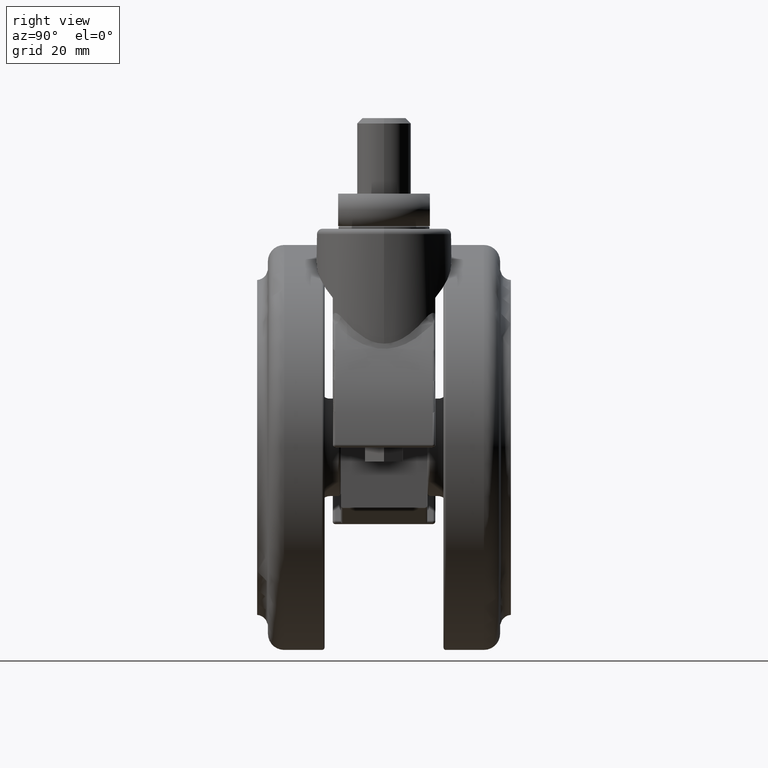
[diagram: clean part render]
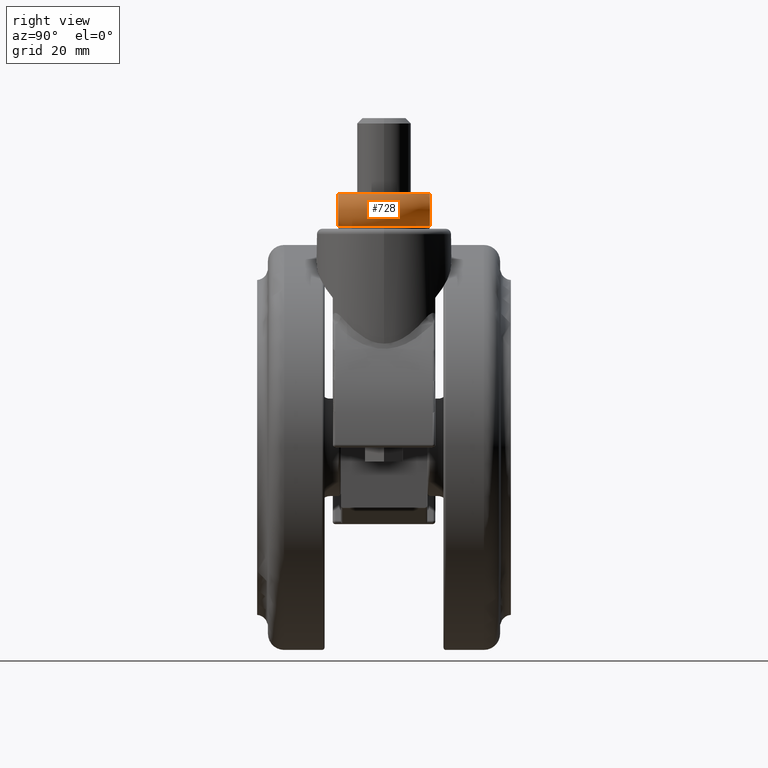
[diagram: same view with one face highlighted and labeled with its STEP entity id]
A machine part, right view. The second image highlights one B-rep face of the part: STEP entity #728.
In plain terms, the highlighted toroidal blend (fillet) surface has major radius 6.3542 mm and minor (blend) radius 4 mm.
Its self-contained STEP definition (entity closure, byte-faithful):
#25 = CARTESIAN_POINT ( 'NONE',  ( 5.558422470074428500, -8.499999999999913000, 2.243669333880693000 ) ) ;
#54 = B_SPLINE_CURVE_WITH_KNOTS ( 'NONE', 3,
 ( #3571, #4249, #4950, #892, #5617, #1594, #6314, #2267, #6993, #2945, #7666, #3595, #8330, #4279, #244, #4972, #931, #5647, #1618, #6345, #2299, #7022, #2974, #7700, #3622, #8353, #4311, #270, #4998, #956 ),
 .UNSPECIFIED., .F., .F.,
 ( 4, 2, 2, 2, 2, 2, 2, 2, 2, 2, 2, 2, 2, 2, 4 ),
 ( 0.002981804275303441700, 0.004101889952622809700, 0.004661932791282491500, 0.005221975629942175000, 0.005782018468601857700, 0.006342061307261540400, 0.006902104145921223100, 0.007462146984580905800, 0.008022189823240589300, 0.008582232661900272800, 0.009142275500559954700, 0.009702318339219636500, 0.01026236117787932000, 0.01082240401653900400, 0.01194248969385836700 ),
 .UNSPECIFIED. ) ;
#60 = CARTESIAN_POINT ( 'NONE',  ( 4.805496125058422100, -8.499999999999911200, 5.596845586427992500 ) ) ;
#244 = CARTESIAN_POINT ( 'NONE',  ( 5.912677338556869200, 8.500000000000000000, 3.691464825764651200 ) ) ;
#270 = CARTESIAN_POINT ( 'NONE',  ( 3.673279935559310000, 8.500000000000000000, 0.7368168943553163900 ) ) ;
#324 = CARTESIAN_POINT ( 'NONE',  ( 2.958037795423370300, 8.500000000000000000, 0.4999999999998860400 ) ) ;
#675 = CARTESIAN_POINT ( 'NONE',  ( 3.320938102547085400, -8.499999999999911200, 0.6051904574097518600 ) ) ;
#705 = CARTESIAN_POINT ( 'NONE',  ( 5.798337122176991300, -8.499999999999911200, 2.758914591916869200 ) ) ;
#728 = ADVANCED_FACE ( 'NONE', ( #4555 ), #8144, .T. ) ;
#740 = CARTESIAN_POINT ( 'NONE',  ( 4.338424135825536400, -8.499999999999907600, 5.919417256496898500 ) ) ;
#892 = CARTESIAN_POINT ( 'NONE',  ( 4.178392893720611000, 8.499999999999998200, 6.010522704488717900 ) ) ;
#931 = CARTESIAN_POINT ( 'NONE',  ( 5.889184999646361400, 8.500000000000000000, 3.123289930474376400 ) ) ;
#956 = CARTESIAN_POINT ( 'NONE',  ( 2.958037795423370300, 8.500000000000000000, 0.4999999999998860400 ) ) ;
#993 = CIRCLE ( 'NONE', #1648, 8.999999999999550600 ) ;
#1304 = CARTESIAN_POINT ( 'NONE',  ( 0.0000000000000000000, 0.0000000000000000000, 3.499999999999885000 ) ) ;
#1385 = CARTESIAN_POINT ( 'NONE',  ( 5.912677340065991800, -8.499999999999911200, 3.308535192482435300 ) ) ;
#1419 = CARTESIAN_POINT ( 'NONE',  ( 3.673279918959588800, -8.499999999999913000, 6.263183112504813200 ) ) ;
#1560 = ORIENTED_EDGE ( 'NONE', *, *, #2919, .T. ) ;
#1594 = CARTESIAN_POINT ( 'NONE',  ( 4.657942710687452200, 8.500000000000001800, 5.708676940681424000 ) ) ;
#1618 = CARTESIAN_POINT ( 'NONE',  ( 5.729450760723698200, 8.500000000000000000, 2.577989914978450400 ) ) ;
#1648 = AXIS2_PLACEMENT_3D ( 'NONE', #6401, #2356, #7087 ) ;
#1746 = ORIENTED_EDGE ( 'NONE', *, *, #4323, .F. ) ;
#1998 = EDGE_LOOP ( 'NONE', ( #8436, #1560, #1746, #2019 ) ) ;
#2019 = ORIENTED_EDGE ( 'NONE', *, *, #6557, .F. ) ;
#2048 = CARTESIAN_POINT ( 'NONE',  ( 4.178392909131842400, -8.499999999999913000, 0.9894773039334104900 ) ) ;
#2079 = CARTESIAN_POINT ( 'NONE',  ( 5.889184996736498900, -8.499999999999911200, 3.876710087050886600 ) ) ;
#2116 = CARTESIAN_POINT ( 'NONE',  ( 2.958037778009625200, -8.499999999999911200, 6.500000005047589900 ) ) ;
#2267 = CARTESIAN_POINT ( 'NONE',  ( 5.087615524475501700, 8.499999999999998200, 5.346348415099307700 ) ) ;
#2299 = CARTESIAN_POINT ( 'NONE',  ( 5.452985533873556900, 8.500000000000000000, 2.082928216990122200 ) ) ;
#2356 = DIRECTION ( 'NONE',  ( 0.0000000000000000000, 0.0000000000000000000, -1.000000000000000000 ) ) ;
#2437 = CARTESIAN_POINT ( 'NONE',  ( 0.0000000000000000000, 0.0000000000000000000, 6.500000005047589900 ) ) ;
#2537 = CIRCLE ( 'NONE', #4058, 8.999999305340569600 ) ;
#2726 = CARTESIAN_POINT ( 'NONE',  ( 4.657942724861418200, -8.499999999999909400, 1.291323069595781100 ) ) ;
#2757 = CARTESIAN_POINT ( 'NONE',  ( 5.729450753716800000, -8.499999999999909400, 4.422010101522777100 ) ) ;
#2896 = AXIS2_PLACEMENT_3D ( 'NONE', #1304, #8734, #6069 ) ;
#2919 = EDGE_CURVE ( 'NONE', #6020, #7057, #2537, .T. ) ;
#2945 = CARTESIAN_POINT ( 'NONE',  ( 5.455471081818611600, 8.500000000000001800, 4.913523281061844500 ) ) ;
#2974 = CARTESIAN_POINT ( 'NONE',  ( 5.086282115518916800, 8.499999999999998200, 1.652321554459616100 ) ) ;
#3103 = DIRECTION ( 'NONE',  ( -1.000000000000000000, 0.0000000000000000000, 0.0000000000000000000 ) ) ;
#3386 = CARTESIAN_POINT ( 'NONE',  ( 5.087615537005448600, -8.499999999999911200, 1.653651597249346400 ) ) ;
#3412 = CARTESIAN_POINT ( 'NONE',  ( 5.452985523429581400, -8.499999999999909400, 4.917071797860044700 ) ) ;
#3571 = CARTESIAN_POINT ( 'NONE',  ( 2.958037778009130000, 8.500000000000000000, 6.499999999999619900 ) ) ;
#3595 = CARTESIAN_POINT ( 'NONE',  ( 5.730016949556382900, 8.500000000000001800, 4.420678286463249200 ) ) ;
#3622 = CARTESIAN_POINT ( 'NONE',  ( 4.654018167417305600, 8.500000000000000000, 1.288449243163168700 ) ) ;
#3931 = CARTESIAN_POINT ( 'NONE',  ( 2.958037795423865000, -8.499999999999911200, 0.4999999999998860400 ) ) ;
#4055 = CARTESIAN_POINT ( 'NONE',  ( 5.455471091931359600, -8.499999999999911200, 2.086476733389500900 ) ) ;
#4058 = AXIS2_PLACEMENT_3D ( 'NONE', #2437, #7156, #3103 ) ;
#4087 = CARTESIAN_POINT ( 'NONE',  ( 5.086282102795177500, -8.499999999999911200, 5.347678458073753300 ) ) ;
#4247 = VERTEX_POINT ( 'NONE', #3931 ) ;
#4249 = CARTESIAN_POINT ( 'NONE',  ( 3.320938085845487600, 8.500000000000001800, 6.394809548353588700 ) ) ;
#4279 = CARTESIAN_POINT ( 'NONE',  ( 5.888955475670685200, 8.500000000000001800, 3.877550157011580000 ) ) ;
#4300 = CARTESIAN_POINT ( 'NONE',  ( 2.958037778009625200, -8.499999999999911200, 6.500000005047589900 ) ) ;
#4311 = CARTESIAN_POINT ( 'NONE',  ( 4.175340631051169800, 8.500000000000000000, 0.9878538016054926300 ) ) ;
#4323 = EDGE_CURVE ( 'NONE', #4247, #7057, #4599, .T. ) ;
#4555 = FACE_OUTER_BOUND ( 'NONE', #1998, .T. ) ;
#4599 = B_SPLINE_CURVE_WITH_KNOTS ( 'NONE', 3,
 ( #5395, #675, #6092, #2048, #6774, #2726, #7441, #3386, #8113, #4055, #25, #4759, #705, #5430, #1385, #6131, #2079, #6803, #2757, #7476, #3412, #8142, #4087, #60, #4790, #740, #5460, #1419, #6157, #2116 ),
 .UNSPECIFIED., .F., .F.,
 ( 4, 2, 2, 2, 2, 2, 2, 2, 2, 2, 2, 2, 2, 2, 4 ),
 ( 0.002981804292575575500, 0.004101889969981128500, 0.004661932808683906900, 0.005221975647386685300, 0.005782018486089463700, 0.006342061324792241200, 0.006902104163495020500, 0.007462147002197799800, 0.008022189840900577400, 0.008582232679603353200, 0.009142275518306130700, 0.009702318357008906500, 0.01026236119571168400, 0.01082240403441446200, 0.01194248971182001500 ),
 .UNSPECIFIED. ) ;
#4759 = CARTESIAN_POINT ( 'NONE',  ( 5.730016956536734300, -8.499999999999909400, 2.579321729980843500 ) ) ;
#4790 = CARTESIAN_POINT ( 'NONE',  ( 4.654018152695882400, -8.499999999999911200, 5.711550767475449300 ) ) ;
#4950 = CARTESIAN_POINT ( 'NONE',  ( 3.673593525293934000, 8.500000000000000000, 6.263219108169482600 ) ) ;
#4972 = CARTESIAN_POINT ( 'NONE',  ( 5.912795228058486800, 8.499999999999998200, 3.309946801378274500 ) ) ;
#4998 = CARTESIAN_POINT ( 'NONE',  ( 3.320021988970906200, 8.500000000000000000, 0.6049249122883644200 ) ) ;
#5395 = CARTESIAN_POINT ( 'NONE',  ( 2.958037795423865000, -8.499999999999911200, 0.4999999999998860400 ) ) ;
#5430 = CARTESIAN_POINT ( 'NONE',  ( 5.888955478571253900, -8.499999999999914700, 3.122449860385664500 ) ) ;
#5460 = CARTESIAN_POINT ( 'NONE',  ( 4.175340615314586200, -8.499999999999909400, 6.012146206982778900 ) ) ;
#5617 = CARTESIAN_POINT ( 'NONE',  ( 4.343626260170866600, 8.500000000000000000, 5.916271516682070500 ) ) ;
#5647 = CARTESIAN_POINT ( 'NONE',  ( 5.797988719368769100, 8.499999999999998200, 2.757597707165630100 ) ) ;
#6020 = VERTEX_POINT ( 'NONE', #7271 ) ;
#6069 = DIRECTION ( 'NONE',  ( -1.000000000000000000, 0.0000000000000000000, 0.0000000000000000000 ) ) ;
#6092 = CARTESIAN_POINT ( 'NONE',  ( 3.673593541409682300, -8.499999999999913000, 0.7367808984819816900 ) ) ;
#6131 = CARTESIAN_POINT ( 'NONE',  ( 5.912795226560745300, -8.499999999999914700, 3.690053216377045900 ) ) ;
#6157 = CARTESIAN_POINT ( 'NONE',  ( 3.320021971708802900, -8.499999999999914700, 6.395075093669568400 ) ) ;
#6314 = CARTESIAN_POINT ( 'NONE',  ( 4.807307584990602400, 8.500000000000000000, 5.595383250814829300 ) ) ;
#6345 = CARTESIAN_POINT ( 'NONE',  ( 5.557687540133533100, 8.499999999999998200, 2.242457750426408000 ) ) ;
#6401 = CARTESIAN_POINT ( 'NONE',  ( 0.0000000000000000000, 0.0000000000000000000, 0.4999999999998860400 ) ) ;
#6506 = EDGE_CURVE ( 'NONE', #6020, #7717, #54, .T. ) ;
#6557 = EDGE_CURVE ( 'NONE', #7717, #4247, #993, .T. ) ;
#6774 = CARTESIAN_POINT ( 'NONE',  ( 4.343626275295807000, -8.499999999999911200, 1.083728492390897600 ) ) ;
#6803 = CARTESIAN_POINT ( 'NONE',  ( 5.797988713651877300, -8.499999999999909400, 4.242402309902502100 ) ) ;
#6993 = CARTESIAN_POINT ( 'NONE',  ( 5.219615902485154300, 8.500000000000000000, 5.209341412657303200 ) ) ;
#7022 = CARTESIAN_POINT ( 'NONE',  ( 5.216645008362958100, 8.500000000000000000, 1.787373500442042400 ) ) ;
#7057 = VERTEX_POINT ( 'NONE', #4300 ) ;
#7087 = DIRECTION ( 'NONE',  ( -1.000000000000000000, 0.0000000000000000000, 0.0000000000000000000 ) ) ;
#7156 = DIRECTION ( 'NONE',  ( 0.0000000000000000000, 0.0000000000000000000, -1.000000000000000000 ) ) ;
#7271 = CARTESIAN_POINT ( 'NONE',  ( 2.958037778009130000, 8.500000000000000000, 6.499999999999619900 ) ) ;
#7441 = CARTESIAN_POINT ( 'NONE',  ( 4.807307598654202400, -8.499999999999911200, 1.404616760106990800 ) ) ;
#7476 = CARTESIAN_POINT ( 'NONE',  ( 5.557687530852573900, -8.499999999999909400, 4.757542264890072500 ) ) ;
#7666 = CARTESIAN_POINT ( 'NONE',  ( 5.558422460940740900, 8.500000000000000000, 4.756330681194567600 ) ) ;
#7700 = CARTESIAN_POINT ( 'NONE',  ( 4.805496139090631200, 8.500000000000001800, 1.403154424781456700 ) ) ;
#7717 = VERTEX_POINT ( 'NONE', #324 ) ;
#8113 = CARTESIAN_POINT ( 'NONE',  ( 5.219615914466479500, -8.499999999999911200, 1.790658600601723500 ) ) ;
#8142 = CARTESIAN_POINT ( 'NONE',  ( 5.216644996340764200, -8.499999999999909400, 5.212626512802666300 ) ) ;
#8144 = TOROIDAL_SURFACE ( 'NONE', #2896, 6.354247999999529400, 4.000000000000000000 ) ;
#8330 = CARTESIAN_POINT ( 'NONE',  ( 5.798337116546774100, 8.500000000000000000, 4.241085424907466500 ) ) ;
#8353 = CARTESIAN_POINT ( 'NONE',  ( 4.338424151249735200, 8.500000000000000000, 1.080582752719712500 ) ) ;
#8436 = ORIENTED_EDGE ( 'NONE', *, *, #6506, .F. ) ;
#8734 = DIRECTION ( 'NONE',  ( 0.0000000000000000000, 0.0000000000000000000, -1.000000000000000000 ) ) ;